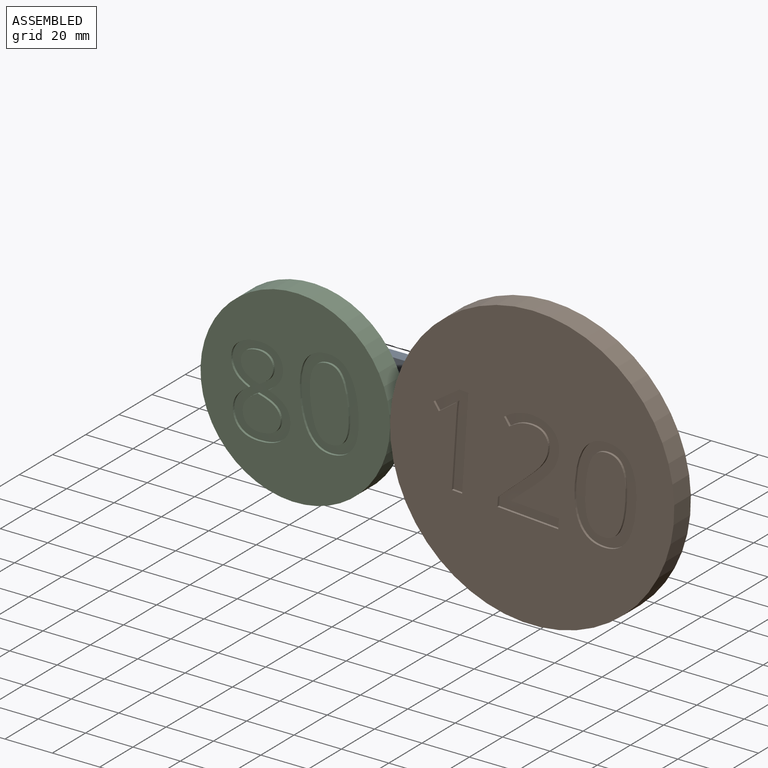
[diagram: assembled view]
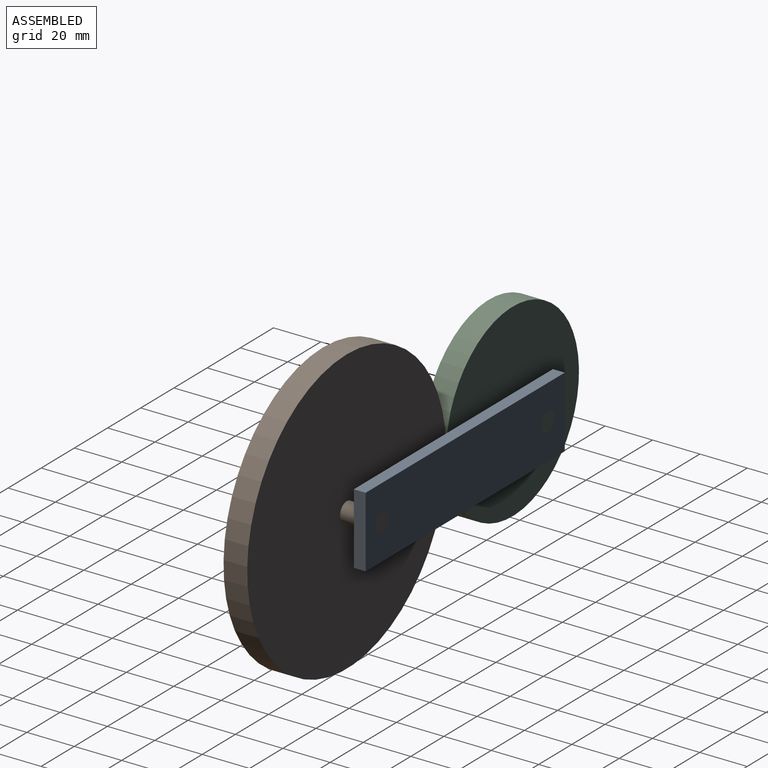
[diagram: assembled view, second angle]
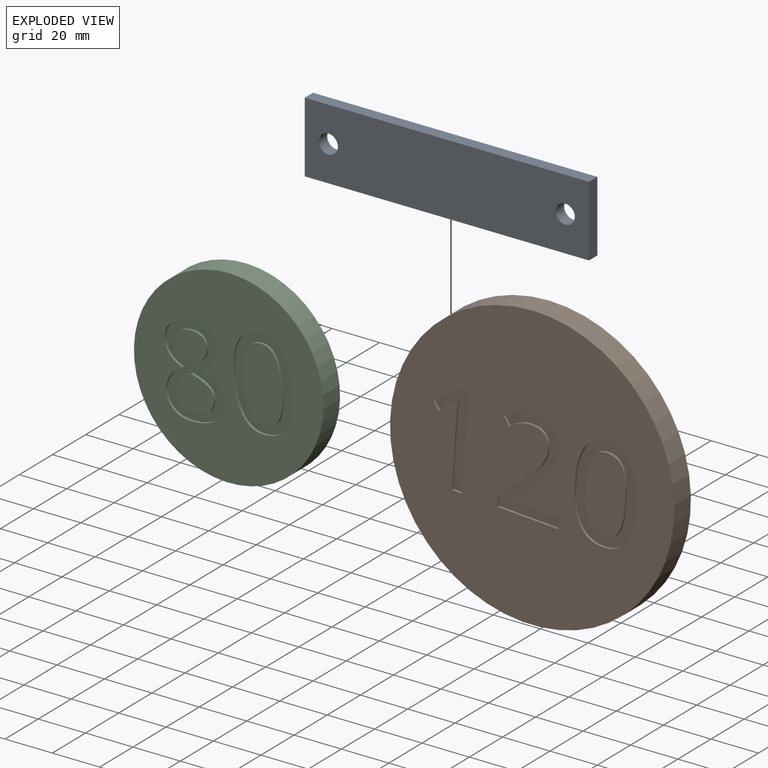
[diagram: exploded view]
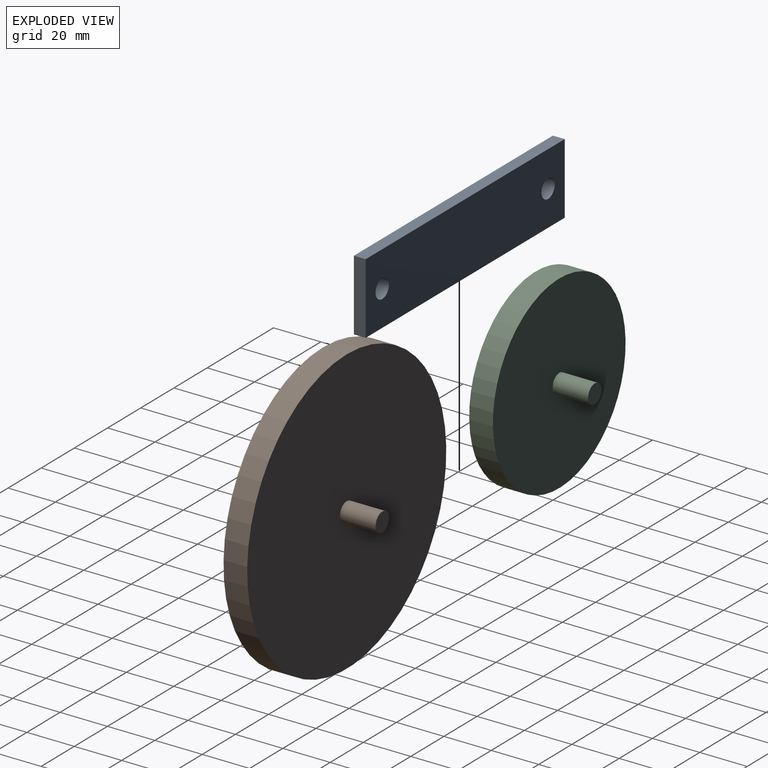
[diagram: exploded view, second angle]
ASSEMBLY  parts=3 mates=2
PART A: 8 faces, bbox 120x5x30 mm
  f0: plane 120x5mm, normal (0,0,-1), area 600mm2, adj f1,f5,f6,f7
  f1: plane 30x5mm, normal (-1,0,0), area 150mm2, adj f0,f2,f6,f7
  f2: plane 120x5mm, normal (0,0,1), area 600mm2, adj f1,f5,f6,f7
  f3: cylinder r=4mm len=8mm, axis (0,1,0), area 125.7mm2, adj f6,f7
  f4: cylinder r=4mm len=8mm, axis (0,1,0), area 125.7mm2, adj f6,f7
  f5: plane 30x5mm, normal (1,0,0), area 150mm2, adj f0,f2,f6,f7
  f6: plane 120x30mm, normal (0,-1,0), area 3499.5mm2, adj f0,f1,f2,f3,f4,f5
  f7: plane 120x30mm, normal (0,1,0), area 3499.5mm2, adj f0,f1,f2,f3,f4,f5
PART B: 54 faces, bbox 120x25x120 mm
  f0: plane 120x120mm, normal (0,-1,0), area 9890.3mm2, adj f4,f12,f13,f14,f15,f16,f17,f18
  f1: cylinder r=4mm len=15mm, axis (0,1,0), area 377mm2, adj f2,f3
  f2: plane 8x8mm, normal (0,1,0), area 50.3mm2, adj f1
  f3: plane 120x120mm, normal (0,1,0), area 11259.5mm2, adj f1,f4
  f4: cylinder r=60mm len=120mm, axis (0,-1,0), area 3769.9mm2, adj f0,f3
  f5: extruded ~12.46x2.01mm, area 12.7mm2, adj f6,f20,f21,f53
  f6: extruded ~12.43x2.01mm, area 12.7mm2, adj f5,f7,f21,f53
  f7: extruded ~6.4x3.87mm, area 7.9mm2, adj f6,f8,f21,f53
  f8: extruded ~6.45x3.93mm, area 8mm2, adj f7,f9,f21,f53
  f9: extruded ~12.37x1.99mm, area 12.6mm2, adj f8,f10,f21,f53
  f10: extruded ~12.4x1.99mm, area 12.7mm2, adj f9,f11,f21,f53
  f11: extruded ~6.45x3.95mm, area 8mm2, adj f10,f20,f21,f53
  f12: extruded ~15.18x3.2mm, area 15.7mm2, adj f0,f13,f19,f21
  f13: extruded ~14.98x3.31mm, area 15.5mm2, adj f0,f12,f14,f21
  f14: extruded ~9.69x5.18mm, area 11.5mm2, adj f0,f13,f15,f21
  f15: extruded ~9.73x4.96mm, area 11.4mm2, adj f0,f14,f16,f21
  f16: extruded ~15.2x3.19mm, area 15.7mm2, adj f0,f15,f17,f21
  f17: extruded ~15.06x3.3mm, area 15.6mm2, adj f0,f16,f18,f21
  f18: extruded ~9.62x5.13mm, area 11.4mm2, adj f0,f17,f19,f21
  f19: extruded ~9.8x5.01mm, area 11.5mm2, adj f0,f12,f18,f21
  f20: extruded ~6.4x3.9mm, area 7.9mm2, adj f5,f11,f21,f53
  f21: plane 40.35x25.92mm, normal (0,-1,0), area 405.7mm2, adj f5,f6,f7,f8,f9,f10,f11,f12
  f22: plane 25.76x1mm, normal (0,0,1), area 25.8mm2, adj f0,f23,f41,f42
  f23: plane 4.13x1mm, normal (-1,0,0), area 4.1mm2, adj f0,f22,f24,f42
  f24: plane 20.16x1mm, normal (0,0,-1), area 20.2mm2, adj f0,f23,f25,f42
  f25: plane 1x0.21mm, normal (-1,0,0), area 0.2mm2, adj f0,f24,f26,f42
  f26: plane 8.58x8.39mm, normal (-0.7,0,0.71), area 12mm2, adj f0,f25,f27,f42
  f27: extruded ~9.22x7.82mm, area 12.1mm2, adj f0,f26,f28,f42
  f28: extruded ~7.38x2.09mm, area 7.8mm2, adj f0,f27,f29,f42
  f29: extruded ~7.6x3.14mm, area 8.5mm2, adj f0,f28,f30,f42
  f30: extruded ~8.66x2.83mm, area 9.3mm2, adj f0,f29,f31,f42
  f31: extruded ~11.8x4.5mm, area 12.9mm2, adj f0,f30,f32,f42
  f32: plane 3.03x2.36mm, normal (0.79,0,0.61), area 3.8mm2, adj f0,f31,f33,f42
  f33: extruded ~4.86x2.93mm, area 5.7mm2, adj f0,f32,f34,f42
  f34: extruded ~4.62x1mm, area 4.7mm2, adj f0,f33,f35,f42
  f35: extruded ~5.28x1.84mm, area 5.7mm2, adj f0,f34,f36,f42
  f36: extruded ~4.98x1.9mm, area 5.5mm2, adj f0,f35,f37,f42
  f37: extruded ~4.15x1mm, area 4.2mm2, adj f0,f36,f38,f42
  f38: extruded ~3.97x2.25mm, area 4.6mm2, adj f0,f37,f39,f42
  f39: extruded ~6.82x6.22mm, area 9.2mm2, adj f0,f38,f40,f42
  f40: plane 10.37x10.32mm, normal (0.71,0,-0.71), area 14.6mm2, adj f0,f39,f41,f42
  f41: plane 3.83x1mm, normal (1,0,0), area 3.8mm2, adj f0,f22,f40,f42
  f42: plane 39.75x25.76mm, normal (0,-1,0), area 338.5mm2, adj f22,f23,f24,f25,f26,f27,f28,f29
  f43: plane 4.34x1mm, normal (0,0,1), area 4.3mm2, adj f0,f44,f51,f52
  f44: plane 39.2x1mm, normal (-1,0,0), area 39.2mm2, adj f0,f43,f45,f52
  f45: plane 3.75x1mm, normal (0,0,-1), area 3.7mm2, adj f0,f44,f46,f52
  f46: plane 10.37x8.02mm, normal (0.61,0,-0.79), area 13.1mm2, adj f0,f45,f47,f52
  f47: plane 3.05x2.36mm, normal (0.79,0,0.61), area 3.9mm2, adj f0,f46,f48,f52
  f48: extruded ~6.38x5.23mm, area 8.2mm2, adj f0,f47,f49,f52
  f49: extruded ~1.26x1.18mm, area 1.7mm2, adj f0,f48,f50,f52
  f50: extruded ~6.6x1mm, area 6.6mm2, adj f0,f49,f51,f52
  f51: plane 27.93x1mm, normal (1,0,0), area 27.9mm2, adj f0,f43,f50,f52
  f52: plane 39.2x14.12mm, normal (0,-1,0), area 210.3mm2, adj f43,f44,f45,f46,f47,f48,f49,f50
  f53: plane 32.66x16.86mm, normal (0,-1,0), area 464.9mm2, adj f5,f6,f7,f8,f9,f10,f11,f20
PART C: 57 faces, bbox 80x25x80 mm
  f0: plane 80x80mm, normal (0,-1,0), area 3534.9mm2, adj f3,f19,f20,f21,f22,f23,f24,f25
  f1: cylinder r=4mm len=15mm, axis (0,1,0), area 377mm2, adj f2,f4
  f2: plane 8x8mm, normal (0,1,0), area 50.3mm2, adj f1
  f3: cylinder r=40mm len=80mm, axis (0,-1,0), area 2513.3mm2, adj f0,f4
  f4: plane 80x80mm, normal (0,1,0), area 4976.3mm2, adj f1,f3
  f5: extruded ~4.96x1.52mm, area 5.3mm2, adj f6,f35,f36,f55
  f6: extruded ~5.05x1.51mm, area 5.4mm2, adj f5,f7,f36,f55
  f7: extruded ~4.06x1.83mm, area 4.6mm2, adj f6,f8,f36,f55
  f8: extruded ~4.07x1.51mm, area 4.4mm2, adj f7,f9,f36,f55
  f9: extruded ~5.12x3.26mm, area 6.1mm2, adj f8,f10,f36,f55
  f10: extruded ~5.51x3.34mm, area 6.5mm2, adj f9,f11,f36,f55
  f11: extruded ~3.99x1.49mm, area 4.4mm2, adj f10,f35,f36,f55
  f12: extruded ~4.73x2.11mm, area 5.4mm2, adj f13,f33,f36,f37
  f13: extruded ~4.69x1.69mm, area 5.1mm2, adj f12,f14,f36,f37
  f14: extruded ~5.46x3.58mm, area 6.6mm2, adj f13,f15,f36,f37
  f15: extruded ~6.88x3.71mm, area 7.9mm2, adj f14,f16,f36,f37
  f16: extruded ~4.36x1.97mm, area 4.9mm2, adj f15,f17,f36,f37
  f17: extruded ~4.86x2.1mm, area 5.5mm2, adj f16,f18,f36,f37
  f18: extruded ~5.87x1.77mm, area 6.3mm2, adj f17,f33,f36,f37
  f19: extruded ~8.02x2.35mm, area 8.5mm2, adj f0,f20,f34,f36
  f20: extruded ~7.95x2.39mm, area 8.5mm2, adj f0,f19,f21,f36
  f21: extruded ~6.41x2.97mm, area 7.3mm2, adj f0,f20,f22,f36
  f22: extruded ~5.12x1.52mm, area 5.4mm2, adj f0,f21,f23,f36
  f23: extruded ~5x4.26mm, area 6.6mm2, adj f0,f22,f24,f36
  f24: extruded ~9.89x7.74mm, area 13.3mm2, adj f0,f23,f25,f36
  f25: extruded ~7.35x3.19mm, area 8.3mm2, adj f0,f24,f26,f36
  f26: extruded ~9.1x2.59mm, area 9.7mm2, adj f0,f25,f27,f36
  f27: extruded ~8.8x2.75mm, area 9.4mm2, adj f0,f26,f28,f36
  f28: extruded ~7.34x3.21mm, area 8.3mm2, adj f0,f27,f29,f36
  f29: extruded ~5.48x1.9mm, area 5.9mm2, adj f0,f28,f30,f36
  f30: extruded ~6.4x4.52mm, area 7.9mm2, adj f0,f29,f31,f36
  f31: extruded ~5.41x4.09mm, area 6.8mm2, adj f0,f30,f32,f36
  f32: extruded ~4.98x1.69mm, area 5.4mm2, adj f0,f31,f34,f36
  f33: extruded ~5.93x1.7mm, area 6.3mm2, adj f12,f18,f36,f37
  f34: extruded ~6.49x2.96mm, area 7.4mm2, adj f0,f19,f32,f36
  f35: extruded ~4.05x1.8mm, area 4.6mm2, adj f5,f11,f36,f55
  f36: plane 38.01x24.3mm, normal (0,-1,0), area 404.9mm2, adj f5,f6,f7,f8,f9,f10,f11,f12
  f37: plane 16.01x14.69mm, normal (0,-1,0), area 178.8mm2, adj f12,f13,f14,f15,f16,f17,f18,f33
  f38: extruded ~11.75x1.9mm, area 12mm2, adj f39,f53,f54,f56
  f39: extruded ~11.72x1.9mm, area 12mm2, adj f38,f40,f54,f56
  f40: extruded ~6.04x3.65mm, area 7.5mm2, adj f39,f41,f54,f56
  f41: extruded ~6.08x3.71mm, area 7.5mm2, adj f40,f42,f54,f56
  f42: extruded ~11.67x1.88mm, area 11.9mm2, adj f41,f43,f54,f56
  f43: extruded ~11.7x1.88mm, area 11.9mm2, adj f42,f44,f54,f56
  f44: extruded ~6.08x3.73mm, area 7.6mm2, adj f43,f53,f54,f56
  f45: extruded ~14.32x3.02mm, area 14.8mm2, adj f0,f46,f52,f54
  f46: extruded ~14.13x3.12mm, area 14.7mm2, adj f0,f45,f47,f54
  f47: extruded ~9.14x4.88mm, area 10.9mm2, adj f0,f46,f48,f54
  f48: extruded ~9.18x4.68mm, area 10.8mm2, adj f0,f47,f49,f54
  f49: extruded ~14.33x3.01mm, area 14.8mm2, adj f0,f48,f50,f54
  f50: extruded ~14.21x3.11mm, area 14.7mm2, adj f0,f49,f51,f54
  f51: extruded ~9.08x4.84mm, area 10.8mm2, adj f0,f50,f52,f54
  f52: extruded ~9.24x4.73mm, area 10.9mm2, adj f0,f45,f51,f54
  f53: extruded ~6.04x3.68mm, area 7.5mm2, adj f38,f44,f54,f56
  f54: plane 38.06x24.45mm, normal (0,-1,0), area 361mm2, adj f38,f39,f40,f41,f42,f43,f44,f45
  f55: plane 13.63x12.9mm, normal (0,-1,0), area 133.3mm2, adj f5,f6,f7,f8,f9,f10,f11,f35
  f56: plane 30.81x15.9mm, normal (0,-1,0), area 413.6mm2, adj f38,f39,f40,f41,f42,f43,f44,f53
PLACE A at identity fixed
PLACE B rot(axis=(0,1,0),3.8deg) t=(0.22,0,6.67)mm
PLACE C rot(axis=(0,-1,0),5.7deg) t=(0,0,0)mm
MATE revolute A.f3 <-> B.f1  axis (0,1,0) through (100,0,0)mm
MATE revolute A.f4 <-> C.f1  axis (0,1,0) through (0,0,0)mm
